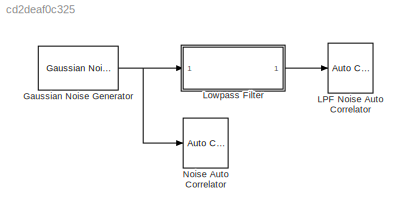
MODEL slx_cd2deaf0c325
KIND model
BLOCK [Reference] Gaussian Noise Generator  REF=commnoisgen2/Gaussian Noise
Generator
  Ports = [0, 1]
  SourceBlock = commnoisgen2/Gaussian Noise\nGenerator
  SourceType = Gaussian Noise Generator
  Ts = 2e-5
  d = 1
  frameBased = off
  m = 0
  orient = off
  outDataType = double
  s = randseed
  sampPerFrame = 1
BLOCK [Reference] LPF Noise Auto Correlator  REF=simulink_extras/Additional
Sinks/Auto
Correlator
  HowOften = 1000
  Ports = [1]
  SourceBlock = simulink_extras/Additional\nSinks/Auto\nCorrelator
  SourceType = Auto Correlator
  npts = 1000
  sampleT = 2e-5
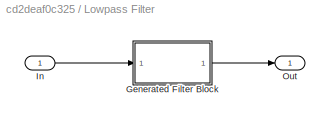
BLOCK [SubSystem] Lowpass Filter
  CopyFcn = fdesignblkfcn(gcbh, {'CopyFcn'});
  DialogController = fdesignblkfcn
  InitFcn = fdesignblkfcn(gcbh, {'InitFcn'});
  Ports = [1, 1]
  RequestExecContextInheritance = off
  UserDataPersistent = on
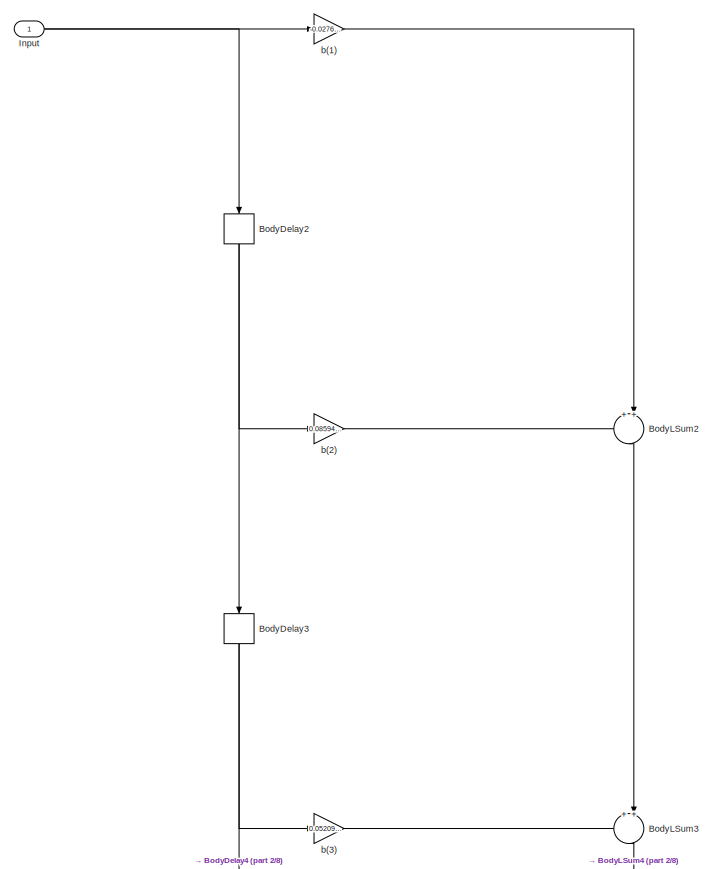
[diagram: Lowpass Filter/Generated Filter Block - part 1/8, full width, top band]
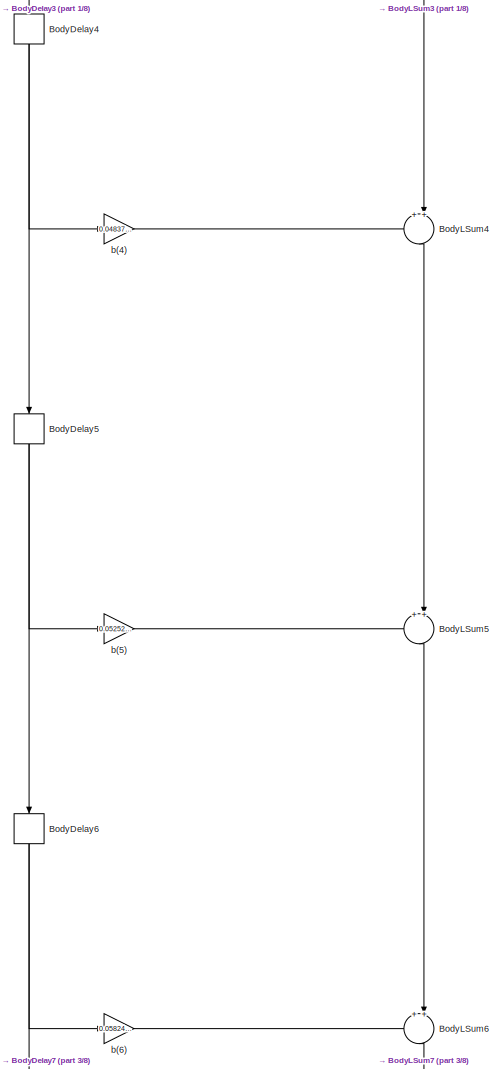
[diagram: Lowpass Filter/Generated Filter Block - part 2/8, top center region]
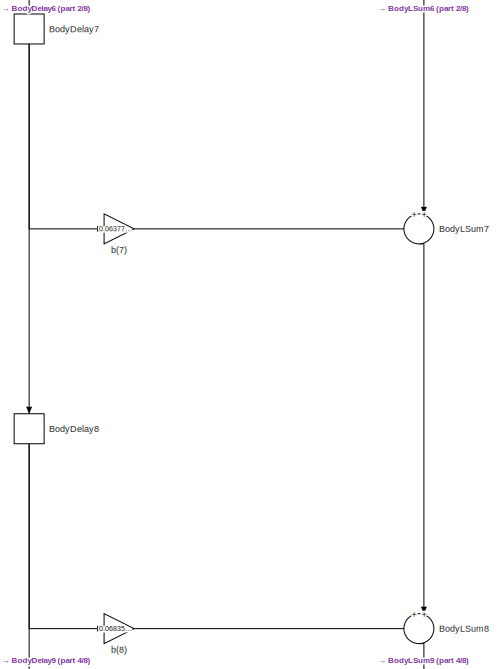
[diagram: Lowpass Filter/Generated Filter Block - part 3/8, top center region]
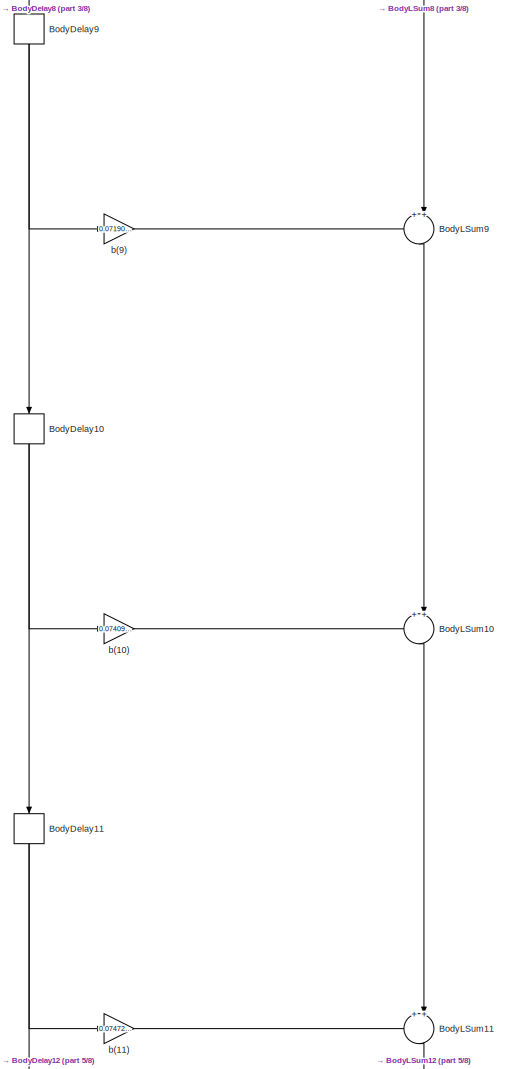
[diagram: Lowpass Filter/Generated Filter Block - part 4/8, central region]
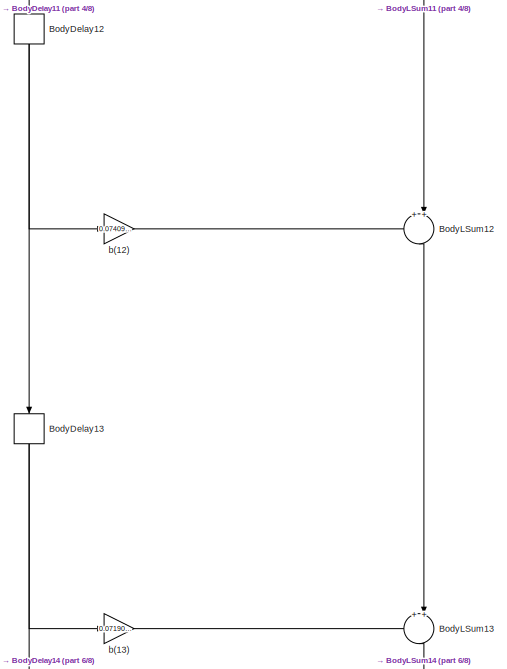
[diagram: Lowpass Filter/Generated Filter Block - part 5/8, central region]
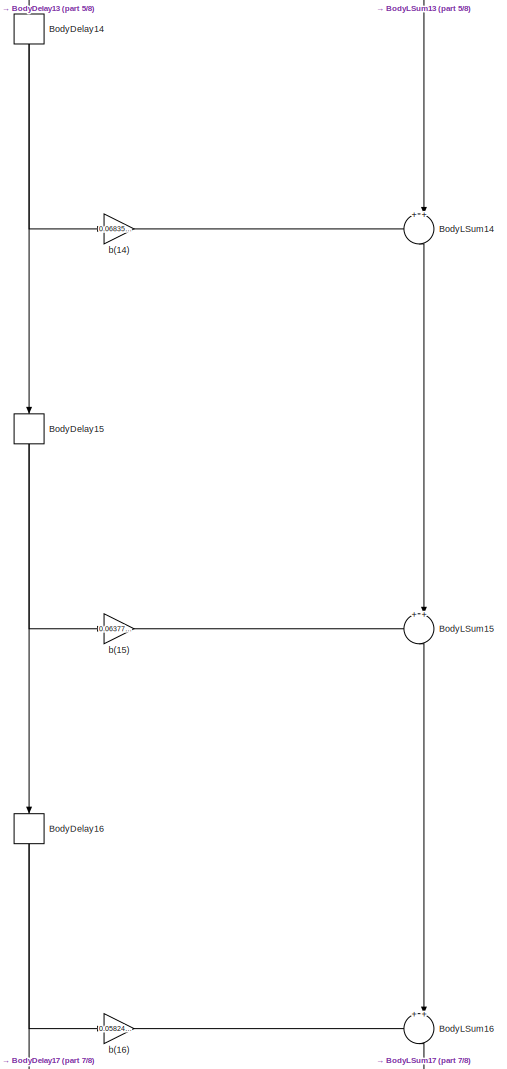
[diagram: Lowpass Filter/Generated Filter Block - part 6/8, bottom center region]
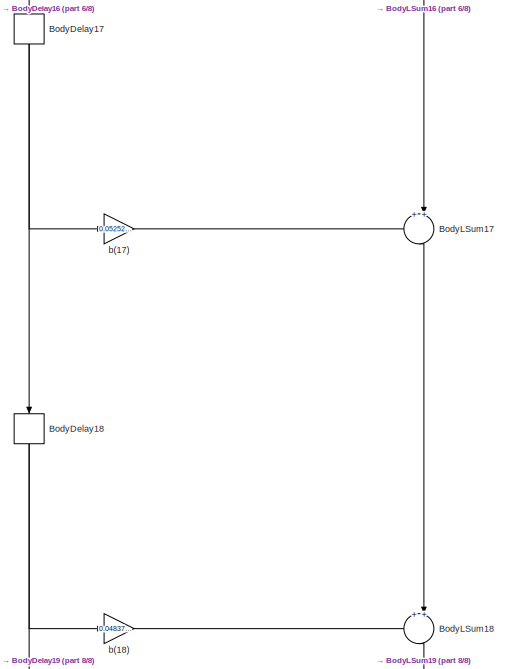
[diagram: Lowpass Filter/Generated Filter Block - part 7/8, bottom center region]
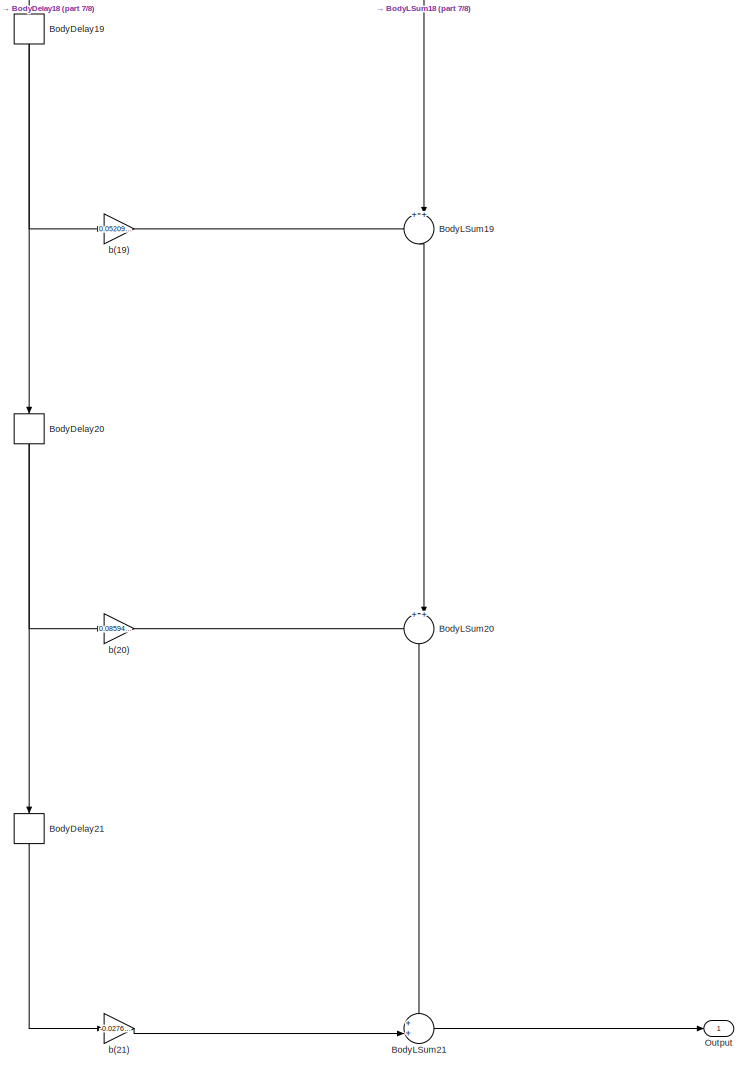
[diagram: Lowpass Filter/Generated Filter Block - part 8/8, full width, bottom band]
BLOCK [SubSystem] Lowpass Filter/Generated Filter Block
  ErrorFcn = dspFilterRealizedInBasicElemsAlgLoopErrFcnCallback
  Ports = [1, 1]
  RequestExecContextInheritance = off
  Tag = FilterWizardSubSystem
  UserDataPersistent = on
BLOCK [Delay] Lowpass Filter/Generated Filter Block/BodyDelay10
  DelayLength = 1
  InitialCondition = 0
  InputPortMap = u0
  InputProcessing = Inherited
  Ports = [1, 1]
BLOCK [Delay] Lowpass Filter/Generated Filter Block/BodyDelay11
  DelayLength = 1
  InitialCondition = 0
  InputPortMap = u0
  InputProcessing = Inherited
  Ports = [1, 1]
BLOCK [Delay] Lowpass Filter/Generated Filter Block/BodyDelay12
  DelayLength = 1
  InitialCondition = 0
  InputPortMap = u0
  InputProcessing = Inherited
  Ports = [1, 1]
BLOCK [Delay] Lowpass Filter/Generated Filter Block/BodyDelay13
  DelayLength = 1
  InitialCondition = 0
  InputPortMap = u0
  InputProcessing = Inherited
  Ports = [1, 1]
BLOCK [Delay] Lowpass Filter/Generated Filter Block/BodyDelay14
  DelayLength = 1
  InitialCondition = 0
  InputPortMap = u0
  InputProcessing = Inherited
  Ports = [1, 1]
BLOCK [Delay] Lowpass Filter/Generated Filter Block/BodyDelay15
  DelayLength = 1
  InitialCondition = 0
  InputPortMap = u0
  InputProcessing = Inherited
  Ports = [1, 1]
BLOCK [Delay] Lowpass Filter/Generated Filter Block/BodyDelay16
  DelayLength = 1
  InitialCondition = 0
  InputPortMap = u0
  InputProcessing = Inherited
  Ports = [1, 1]
BLOCK [Delay] Lowpass Filter/Generated Filter Block/BodyDelay17
  DelayLength = 1
  InitialCondition = 0
  InputPortMap = u0
  InputProcessing = Inherited
  Ports = [1, 1]
BLOCK [Delay] Lowpass Filter/Generated Filter Block/BodyDelay18
  DelayLength = 1
  InitialCondition = 0
  InputPortMap = u0
  InputProcessing = Inherited
  Ports = [1, 1]
BLOCK [Delay] Lowpass Filter/Generated Filter Block/BodyDelay19
  DelayLength = 1
  InitialCondition = 0
  InputPortMap = u0
  InputProcessing = Inherited
  Ports = [1, 1]
BLOCK [Delay] Lowpass Filter/Generated Filter Block/BodyDelay2
  DelayLength = 1
  InitialCondition = 0
  InputPortMap = u0
  InputProcessing = Inherited
  Ports = [1, 1]
BLOCK [Delay] Lowpass Filter/Generated Filter Block/BodyDelay20
  DelayLength = 1
  InitialCondition = 0
  InputPortMap = u0
  InputProcessing = Inherited
  Ports = [1, 1]
BLOCK [Delay] Lowpass Filter/Generated Filter Block/BodyDelay21
  DelayLength = 1
  InitialCondition = 0
  InputPortMap = u0
  InputProcessing = Inherited
  Ports = [1, 1]
BLOCK [Delay] Lowpass Filter/Generated Filter Block/BodyDelay3
  DelayLength = 1
  InitialCondition = 0
  InputPortMap = u0
  InputProcessing = Inherited
  Ports = [1, 1]
BLOCK [Delay] Lowpass Filter/Generated Filter Block/BodyDelay4
  DelayLength = 1
  InitialCondition = 0
  InputPortMap = u0
  InputProcessing = Inherited
  Ports = [1, 1]
BLOCK [Delay] Lowpass Filter/Generated Filter Block/BodyDelay5
  DelayLength = 1
  InitialCondition = 0
  InputPortMap = u0
  InputProcessing = Inherited
  Ports = [1, 1]
BLOCK [Delay] Lowpass Filter/Generated Filter Block/BodyDelay6
  DelayLength = 1
  InitialCondition = 0
  InputPortMap = u0
  InputProcessing = Inherited
  Ports = [1, 1]
BLOCK [Delay] Lowpass Filter/Generated Filter Block/BodyDelay7
  DelayLength = 1
  InitialCondition = 0
  InputPortMap = u0
  InputProcessing = Inherited
  Ports = [1, 1]
BLOCK [Delay] Lowpass Filter/Generated Filter Block/BodyDelay8
  DelayLength = 1
  InitialCondition = 0
  InputPortMap = u0
  InputProcessing = Inherited
  Ports = [1, 1]
BLOCK [Delay] Lowpass Filter/Generated Filter Block/BodyDelay9
  DelayLength = 1
  InitialCondition = 0
  InputPortMap = u0
  InputProcessing = Inherited
  Ports = [1, 1]
BLOCK [Sum] Lowpass Filter/Generated Filter Block/BodyLSum10
  IconShape = round
  InputSameDT = off
  Inputs = ++|
  Ports = [2, 1]
  RndMeth = Nearest
BLOCK [Sum] Lowpass Filter/Generated Filter Block/BodyLSum11
  IconShape = round
  InputSameDT = off
  Inputs = ++|
  Ports = [2, 1]
  RndMeth = Nearest
BLOCK [Sum] Lowpass Filter/Generated Filter Block/BodyLSum12
  IconShape = round
  InputSameDT = off
  Inputs = ++|
  Ports = [2, 1]
  RndMeth = Nearest
BLOCK [Sum] Lowpass Filter/Generated Filter Block/BodyLSum13
  IconShape = round
  InputSameDT = off
  Inputs = ++|
  Ports = [2, 1]
  RndMeth = Nearest
BLOCK [Sum] Lowpass Filter/Generated Filter Block/BodyLSum14
  IconShape = round
  InputSameDT = off
  Inputs = ++|
  Ports = [2, 1]
  RndMeth = Nearest
BLOCK [Sum] Lowpass Filter/Generated Filter Block/BodyLSum15
  IconShape = round
  InputSameDT = off
  Inputs = ++|
  Ports = [2, 1]
  RndMeth = Nearest
BLOCK [Sum] Lowpass Filter/Generated Filter Block/BodyLSum16
  IconShape = round
  InputSameDT = off
  Inputs = ++|
  Ports = [2, 1]
  RndMeth = Nearest
BLOCK [Sum] Lowpass Filter/Generated Filter Block/BodyLSum17
  IconShape = round
  InputSameDT = off
  Inputs = ++|
  Ports = [2, 1]
  RndMeth = Nearest
BLOCK [Sum] Lowpass Filter/Generated Filter Block/BodyLSum18
  IconShape = round
  InputSameDT = off
  Inputs = ++|
  Ports = [2, 1]
  RndMeth = Nearest
BLOCK [Sum] Lowpass Filter/Generated Filter Block/BodyLSum19
  IconShape = round
  InputSameDT = off
  Inputs = ++|
  Ports = [2, 1]
  RndMeth = Nearest
BLOCK [Sum] Lowpass Filter/Generated Filter Block/BodyLSum2
  IconShape = round
  InputSameDT = off
  Inputs = ++|
  Ports = [2, 1]
  RndMeth = Nearest
BLOCK [Sum] Lowpass Filter/Generated Filter Block/BodyLSum20
  IconShape = round
  InputSameDT = off
  Inputs = ++|
  Ports = [2, 1]
  RndMeth = Nearest
BLOCK [Sum] Lowpass Filter/Generated Filter Block/BodyLSum21
  IconShape = round
  InputSameDT = off
  Inputs = ++|
  Ports = [2, 1]
  RndMeth = Nearest
BLOCK [Sum] Lowpass Filter/Generated Filter Block/BodyLSum3
  IconShape = round
  InputSameDT = off
  Inputs = ++|
  Ports = [2, 1]
  RndMeth = Nearest
BLOCK [Sum] Lowpass Filter/Generated Filter Block/BodyLSum4
  IconShape = round
  InputSameDT = off
  Inputs = ++|
  Ports = [2, 1]
  RndMeth = Nearest
BLOCK [Sum] Lowpass Filter/Generated Filter Block/BodyLSum5
  IconShape = round
  InputSameDT = off
  Inputs = ++|
  Ports = [2, 1]
  RndMeth = Nearest
BLOCK [Sum] Lowpass Filter/Generated Filter Block/BodyLSum6
  IconShape = round
  InputSameDT = off
  Inputs = ++|
  Ports = [2, 1]
  RndMeth = Nearest
BLOCK [Sum] Lowpass Filter/Generated Filter Block/BodyLSum7
  IconShape = round
  InputSameDT = off
  Inputs = ++|
  Ports = [2, 1]
  RndMeth = Nearest
BLOCK [Sum] Lowpass Filter/Generated Filter Block/BodyLSum8
  IconShape = round
  InputSameDT = off
  Inputs = ++|
  Ports = [2, 1]
  RndMeth = Nearest
BLOCK [Sum] Lowpass Filter/Generated Filter Block/BodyLSum9
  IconShape = round
  InputSameDT = off
  Inputs = ++|
  Ports = [2, 1]
  RndMeth = Nearest
BLOCK [Inport] Lowpass Filter/Generated Filter Block/Input
  IconDisplay = Port number
BLOCK [Outport] Lowpass Filter/Generated Filter Block/Output
  IconDisplay = Port number
BLOCK [Gain] Lowpass Filter/Generated Filter Block/b(1)
  Gain = -0.027666530405698369
  ParamDataTypeStr = double
  RndMeth = Nearest
BLOCK [Gain] Lowpass Filter/Generated Filter Block/b(10)
  Gain = 0.074095868216650526
  ParamDataTypeStr = double
  RndMeth = Nearest
BLOCK [Gain] Lowpass Filter/Generated Filter Block/b(11)
  Gain = 0.074728734805890137
  ParamDataTypeStr = double
  RndMeth = Nearest
BLOCK [Gain] Lowpass Filter/Generated Filter Block/b(12)
  Gain = 0.074095868216650526
  ParamDataTypeStr = double
  RndMeth = Nearest
BLOCK [Gain] Lowpass Filter/Generated Filter Block/b(13)
  Gain = 0.071906947828147216
  ParamDataTypeStr = double
  RndMeth = Nearest
BLOCK [Gain] Lowpass Filter/Generated Filter Block/b(14)
  Gain = 0.068354414900268598
  ParamDataTypeStr = double
  RndMeth = Nearest
BLOCK [Gain] Lowpass Filter/Generated Filter Block/b(15)
  Gain = 0.063770809712487761
  ParamDataTypeStr = double
  RndMeth = Nearest
BLOCK [Gain] Lowpass Filter/Generated Filter Block/b(16)
  Gain = 0.058240862508143483
  ParamDataTypeStr = double
  RndMeth = Nearest
BLOCK [Gain] Lowpass Filter/Generated Filter Block/b(17)
  Gain = 0.052526811843588185
  ParamDataTypeStr = double
  RndMeth = Nearest
BLOCK [Gain] Lowpass Filter/Generated Filter Block/b(18)
  Gain = 0.048370818914758716
  ParamDataTypeStr = double
  RndMeth = Nearest
BLOCK [Gain] Lowpass Filter/Generated Filter Block/b(19)
  Gain = 0.052097593618530356
  ParamDataTypeStr = double
  RndMeth = Nearest
BLOCK [Gain] Lowpass Filter/Generated Filter Block/b(2)
  Gain = 0.085945765180940395
  ParamDataTypeStr = double
  RndMeth = Nearest
BLOCK [Gain] Lowpass Filter/Generated Filter Block/b(20)
  Gain = 0.085945765180940395
  ParamDataTypeStr = double
  RndMeth = Nearest
BLOCK [Gain] Lowpass Filter/Generated Filter Block/b(21)
  Gain = -0.027666530405698369
  ParamDataTypeStr = double
  RndMeth = Nearest
BLOCK [Gain] Lowpass Filter/Generated Filter Block/b(3)
  Gain = 0.052097593618530356
  ParamDataTypeStr = double
  RndMeth = Nearest
BLOCK [Gain] Lowpass Filter/Generated Filter Block/b(4)
  Gain = 0.048370818914758716
  ParamDataTypeStr = double
  RndMeth = Nearest
BLOCK [Gain] Lowpass Filter/Generated Filter Block/b(5)
  Gain = 0.052526811843588185
  ParamDataTypeStr = double
  RndMeth = Nearest
BLOCK [Gain] Lowpass Filter/Generated Filter Block/b(6)
  Gain = 0.058240862508143483
  ParamDataTypeStr = double
  RndMeth = Nearest
BLOCK [Gain] Lowpass Filter/Generated Filter Block/b(7)
  Gain = 0.063770809712487761
  ParamDataTypeStr = double
  RndMeth = Nearest
BLOCK [Gain] Lowpass Filter/Generated Filter Block/b(8)
  Gain = 0.068354414900268598
  ParamDataTypeStr = double
  RndMeth = Nearest
BLOCK [Gain] Lowpass Filter/Generated Filter Block/b(9)
  Gain = 0.071906947828147216
  ParamDataTypeStr = double
  RndMeth = Nearest
BLOCK [Inport] Lowpass Filter/In
  IconDisplay = Port number
BLOCK [Outport] Lowpass Filter/Out
  IconDisplay = Port number
BLOCK [Reference] Noise Auto Correlator  REF=simulink_extras/Additional
Sinks/Auto
Correlator
  HowOften = 1000
  Ports = [1]
  SourceBlock = simulink_extras/Additional\nSinks/Auto\nCorrelator
  SourceType = Auto Correlator
  npts = 1000
  sampleT = 2e-5
NET Gaussian Noise Generator:1 -> Lowpass Filter:1, Noise Auto Correlator:1
LINE Lowpass Filter:1 -> LPF Noise Auto Correlator:1
note: NET lines group one-source signal fan-out (src -> all destinations, sorted); 1:1 wires keep LINE
